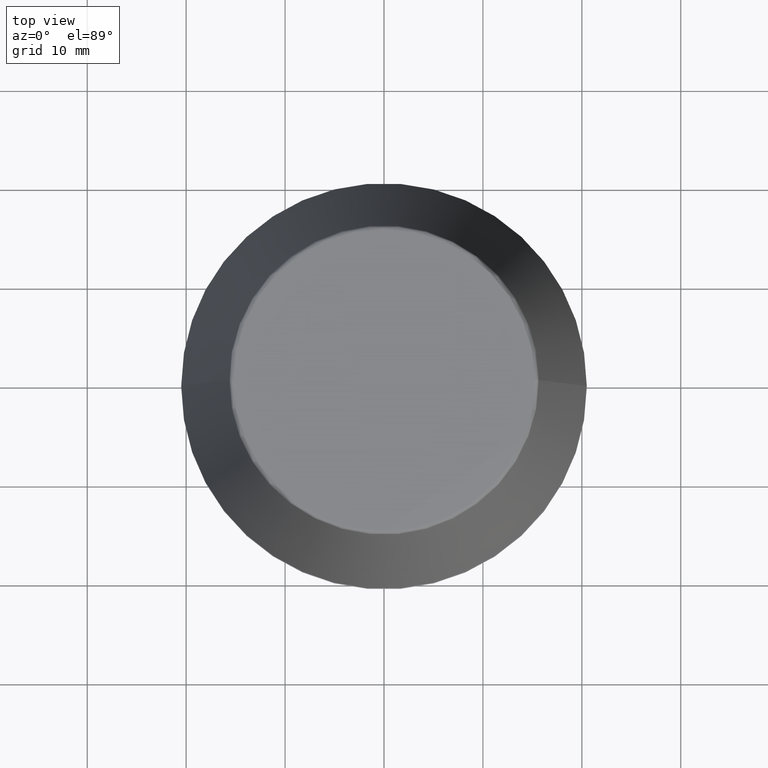
[diagram: clean part render]
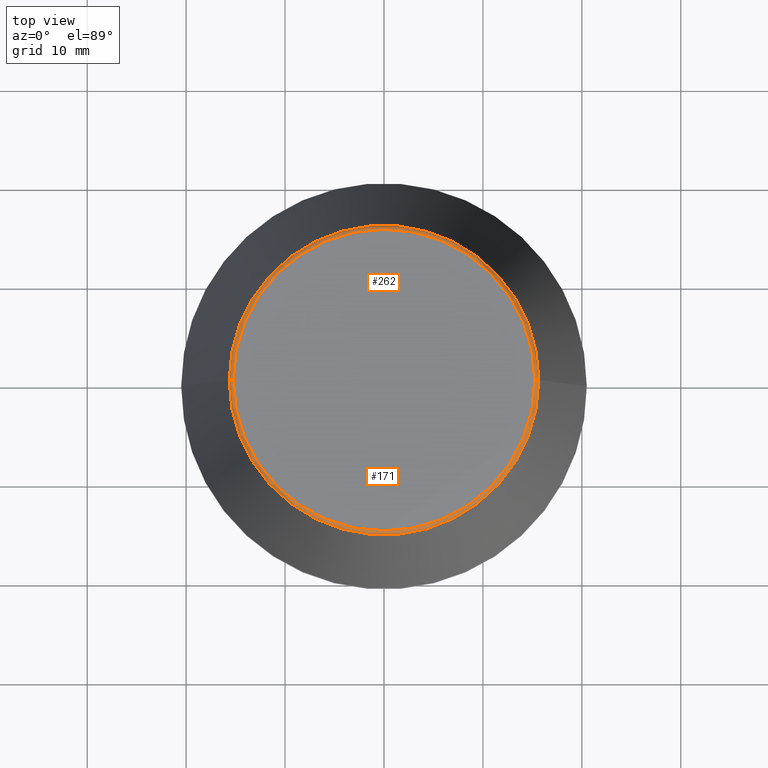
[diagram: same view with one multi-face feature highlighted, each face labeled with its STEP entity id]
A machine part, top view. The highlighted faces form ONE feature: a constant-radius fillet chain: 2 tangent blend faces with common blend radius 0.4 mm. The faces share edges in the B-rep.
Their STEP definitions:
[1] entity #262 (Torus):
#5 = EDGE_CURVE ( 'NONE', #165, #91, #315, .T. ) ;
#6 = DIRECTION ( 'NONE',  ( 1.000000000000000000, 0.0000000000000000000, 0.0000000000000000000 ) ) ;
#8 = EDGE_LOOP ( 'NONE', ( #63, #186, #370, #310 ) ) ;
#17 = CARTESIAN_POINT ( 'NONE',  ( 0.0000000000000000000, 0.0000000000000000000, 45.60000000000000100 ) ) ;
#30 = CIRCLE ( 'NONE', #252, 15.24773554530077600 ) ;
#46 = DIRECTION ( 'NONE',  ( -1.000000000000000000, 1.224646799147353900E-016, 0.0000000000000000000 ) ) ;
#47 = AXIS2_PLACEMENT_3D ( 'NONE', #270, #194, #61 ) ;
#61 = DIRECTION ( 'NONE',  ( 1.000000000000000000, 0.0000000000000000000, 0.0000000000000000000 ) ) ;
#62 = CARTESIAN_POINT ( 'NONE',  ( -15.24773554530077600, 1.891563625393435400E-015, 46.00000000000000000 ) ) ;
#63 = ORIENTED_EDGE ( 'NONE', *, *, #5, .T. ) ;
#66 = DIRECTION ( 'NONE',  ( 0.0000000000000000000, -1.000000000000000000, 0.0000000000000000000 ) ) ;
#79 = EDGE_CURVE ( 'NONE', #165, #317, #199, .T. ) ;
#82 = CARTESIAN_POINT ( 'NONE',  ( -15.24773554530077600, 1.867309052979791600E-015, 45.60000000000000100 ) ) ;
#91 = VERTEX_POINT ( 'NONE', #260 ) ;
#117 = CARTESIAN_POINT ( 'NONE',  ( 15.64384277279740400, 2.213191991290356800E-015, 45.65566924038402900 ) ) ;
#124 = CARTESIAN_POINT ( 'NONE',  ( 15.24773554530077600, 0.0000000000000000000, 45.60000000000000100 ) ) ;
#146 = CARTESIAN_POINT ( 'NONE',  ( 0.0000000000000000000, 0.0000000000000000000, 46.00000000000000000 ) ) ;
#156 = VERTEX_POINT ( 'NONE', #62 ) ;
#165 = VERTEX_POINT ( 'NONE', #117 ) ;
#167 = DIRECTION ( 'NONE',  ( -0.0000000000000000000, -0.0000000000000000000, 1.000000000000000000 ) ) ;
#186 = ORIENTED_EDGE ( 'NONE', *, *, #281, .T. ) ;
#194 = DIRECTION ( 'NONE',  ( -0.0000000000000000000, -0.0000000000000000000, 1.000000000000000000 ) ) ;
#199 = CIRCLE ( 'NONE', #364, 0.3999999999999975800 ) ;
#208 = FACE_OUTER_BOUND ( 'NONE', #8, .T. ) ;
#231 = AXIS2_PLACEMENT_3D ( 'NONE', #17, #167, #282 ) ;
#250 = CARTESIAN_POINT ( 'NONE',  ( 15.24773554530077600, 0.0000000000000000000, 46.00000000000000000 ) ) ;
#252 = AXIS2_PLACEMENT_3D ( 'NONE', #146, #267, #6 ) ;
#260 = CARTESIAN_POINT ( 'NONE',  ( -15.64384277279740400, 0.0000000000000000000, 45.65566924038402900 ) ) ;
#262 = ADVANCED_FACE ( 'NONE', ( #208 ), #359, .T. ) ;
#267 = DIRECTION ( 'NONE',  ( -0.0000000000000000000, -0.0000000000000000000, 1.000000000000000000 ) ) ;
#270 = CARTESIAN_POINT ( 'NONE',  ( 0.0000000000000000000, 0.0000000000000000000, 45.65566924038402900 ) ) ;
#275 = CIRCLE ( 'NONE', #340, 0.3999999999999975800 ) ;
#280 = DIRECTION ( 'NONE',  ( 1.224646799147353200E-016, 1.000000000000000000, 0.0000000000000000000 ) ) ;
#281 = EDGE_CURVE ( 'NONE', #91, #156, #275, .T. ) ;
#282 = DIRECTION ( 'NONE',  ( 1.000000000000000000, 0.0000000000000000000, 0.0000000000000000000 ) ) ;
#310 = ORIENTED_EDGE ( 'NONE', *, *, #79, .F. ) ;
#315 = CIRCLE ( 'NONE', #47, 15.64384277279740400 ) ;
#317 = VERTEX_POINT ( 'NONE', #250 ) ;
#339 = DIRECTION ( 'NONE',  ( 0.0000000000000000000, 0.0000000000000000000, -1.000000000000000000 ) ) ;
#340 = AXIS2_PLACEMENT_3D ( 'NONE', #82, #280, #46 ) ;
#341 = EDGE_CURVE ( 'NONE', #317, #156, #30, .T. ) ;
#359 = TOROIDAL_SURFACE ( 'NONE', #231, 15.24773554530077600, 0.3999999999999991900 ) ;
#364 = AXIS2_PLACEMENT_3D ( 'NONE', #124, #66, #339 ) ;
#370 = ORIENTED_EDGE ( 'NONE', *, *, #341, .F. ) ;
[2] entity #171 (Torus):
#24 = DIRECTION ( 'NONE',  ( 1.000000000000000000, 0.0000000000000000000, 0.0000000000000000000 ) ) ;
#43 = FACE_OUTER_BOUND ( 'NONE', #230, .T. ) ;
#46 = DIRECTION ( 'NONE',  ( -1.000000000000000000, 1.224646799147353900E-016, 0.0000000000000000000 ) ) ;
#62 = CARTESIAN_POINT ( 'NONE',  ( -15.24773554530077600, 1.891563625393435400E-015, 46.00000000000000000 ) ) ;
#66 = DIRECTION ( 'NONE',  ( 0.0000000000000000000, -1.000000000000000000, 0.0000000000000000000 ) ) ;
#79 = EDGE_CURVE ( 'NONE', #165, #317, #199, .T. ) ;
#82 = CARTESIAN_POINT ( 'NONE',  ( -15.24773554530077600, 1.867309052979791600E-015, 45.60000000000000100 ) ) ;
#91 = VERTEX_POINT ( 'NONE', #260 ) ;
#97 = ORIENTED_EDGE ( 'NONE', *, *, #107, .T. ) ;
#107 = EDGE_CURVE ( 'NONE', #91, #165, #354, .T. ) ;
#111 = TOROIDAL_SURFACE ( 'NONE', #242, 15.24773554530077600, 0.3999999999999991900 ) ;
#117 = CARTESIAN_POINT ( 'NONE',  ( 15.64384277279740400, 2.213191991290356800E-015, 45.65566924038402900 ) ) ;
#124 = CARTESIAN_POINT ( 'NONE',  ( 15.24773554530077600, 0.0000000000000000000, 45.60000000000000100 ) ) ;
#125 = DIRECTION ( 'NONE',  ( -0.0000000000000000000, -0.0000000000000000000, 1.000000000000000000 ) ) ;
#126 = AXIS2_PLACEMENT_3D ( 'NONE', #344, #253, #24 ) ;
#149 = DIRECTION ( 'NONE',  ( 1.000000000000000000, 0.0000000000000000000, 0.0000000000000000000 ) ) ;
#156 = VERTEX_POINT ( 'NONE', #62 ) ;
#165 = VERTEX_POINT ( 'NONE', #117 ) ;
#171 = ADVANCED_FACE ( 'NONE', ( #43 ), #111, .T. ) ;
#175 = CARTESIAN_POINT ( 'NONE',  ( 0.0000000000000000000, 0.0000000000000000000, 45.65566924038402900 ) ) ;
#199 = CIRCLE ( 'NONE', #364, 0.3999999999999975800 ) ;
#222 = ORIENTED_EDGE ( 'NONE', *, *, #79, .T. ) ;
#230 = EDGE_LOOP ( 'NONE', ( #374, #97, #222, #336 ) ) ;
#242 = AXIS2_PLACEMENT_3D ( 'NONE', #387, #125, #373 ) ;
#249 = EDGE_CURVE ( 'NONE', #156, #317, #283, .T. ) ;
#250 = CARTESIAN_POINT ( 'NONE',  ( 15.24773554530077600, 0.0000000000000000000, 46.00000000000000000 ) ) ;
#253 = DIRECTION ( 'NONE',  ( -0.0000000000000000000, -0.0000000000000000000, 1.000000000000000000 ) ) ;
#260 = CARTESIAN_POINT ( 'NONE',  ( -15.64384277279740400, 0.0000000000000000000, 45.65566924038402900 ) ) ;
#275 = CIRCLE ( 'NONE', #340, 0.3999999999999975800 ) ;
#280 = DIRECTION ( 'NONE',  ( 1.224646799147353200E-016, 1.000000000000000000, 0.0000000000000000000 ) ) ;
#281 = EDGE_CURVE ( 'NONE', #91, #156, #275, .T. ) ;
#283 = CIRCLE ( 'NONE', #126, 15.24773554530077600 ) ;
#293 = DIRECTION ( 'NONE',  ( -0.0000000000000000000, -0.0000000000000000000, 1.000000000000000000 ) ) ;
#317 = VERTEX_POINT ( 'NONE', #250 ) ;
#336 = ORIENTED_EDGE ( 'NONE', *, *, #249, .F. ) ;
#339 = DIRECTION ( 'NONE',  ( 0.0000000000000000000, 0.0000000000000000000, -1.000000000000000000 ) ) ;
#340 = AXIS2_PLACEMENT_3D ( 'NONE', #82, #280, #46 ) ;
#344 = CARTESIAN_POINT ( 'NONE',  ( 0.0000000000000000000, 0.0000000000000000000, 46.00000000000000000 ) ) ;
#354 = CIRCLE ( 'NONE', #366, 15.64384277279740400 ) ;
#364 = AXIS2_PLACEMENT_3D ( 'NONE', #124, #66, #339 ) ;
#366 = AXIS2_PLACEMENT_3D ( 'NONE', #175, #293, #149 ) ;
#373 = DIRECTION ( 'NONE',  ( 1.000000000000000000, 0.0000000000000000000, 0.0000000000000000000 ) ) ;
#374 = ORIENTED_EDGE ( 'NONE', *, *, #281, .F. ) ;
#387 = CARTESIAN_POINT ( 'NONE',  ( 0.0000000000000000000, 0.0000000000000000000, 45.60000000000000100 ) ) ;